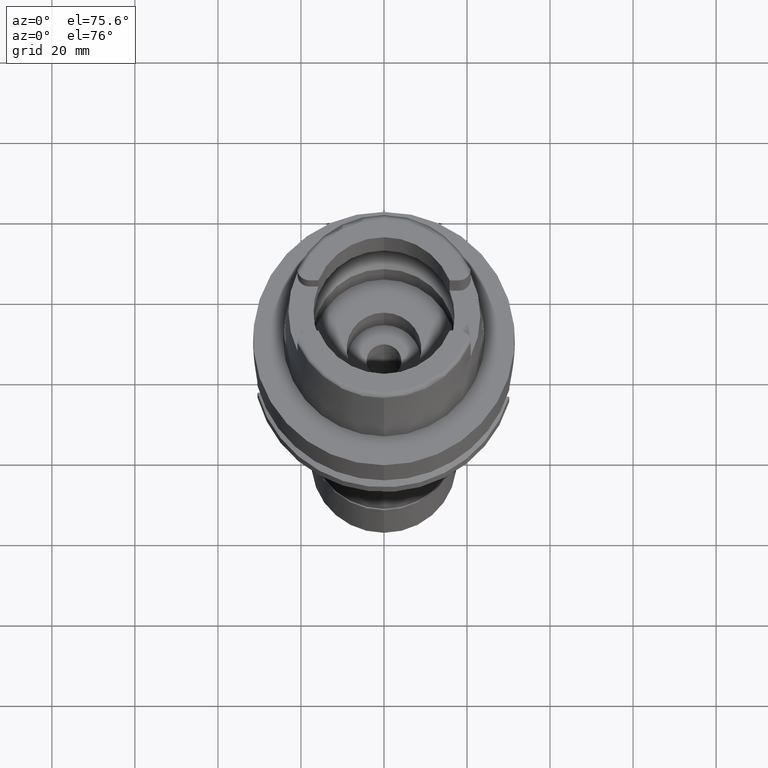
[diagram: clean part render]
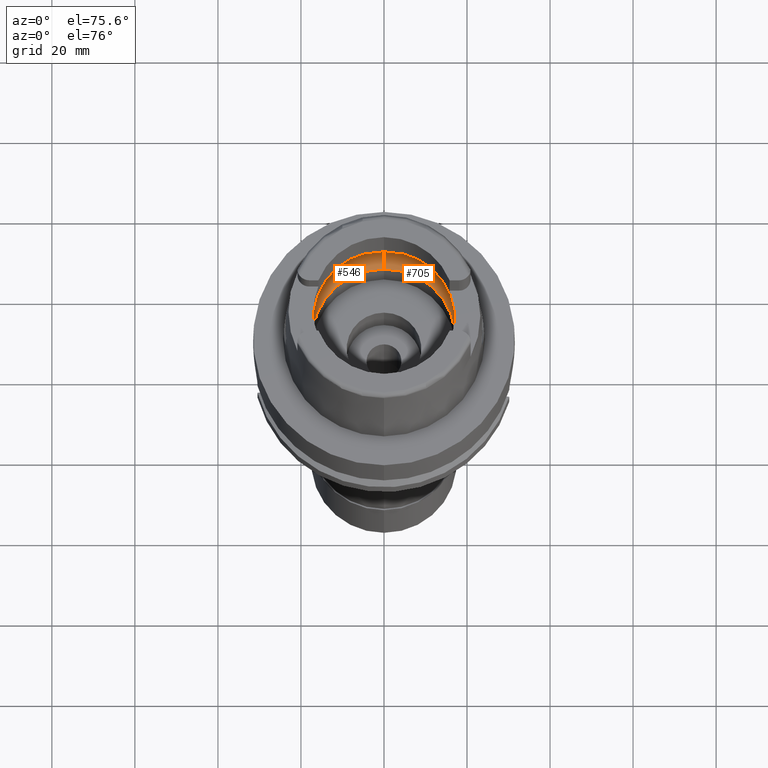
[diagram: same view with one multi-face feature highlighted, each face labeled with its STEP entity id]
A machine part, auxiliary view. The highlighted faces form ONE feature: a constant-radius fillet chain: 2 tangent blend faces with common blend radius 8 mm. The faces share edges in the B-rep.
Their STEP definitions:
[1] entity #705 (Torus):
#18 = CARTESIAN_POINT ( 'NONE',  ( 0.0000000000000000000, 12.00000000000000000, 6.186348233825000875 ) ) ;
#24 = DIRECTION ( 'NONE',  ( 0.0000000000000000000, 1.000000000000000000, 0.0000000000000000000 ) ) ;
#76 = CARTESIAN_POINT ( 'NONE',  ( 0.0000000000000000000, 0.0000000000000000000, 0.1500000000000999700 ) ) ;
#188 = CARTESIAN_POINT ( 'NONE',  ( 19.93292009014226096, -1.081811776603611053, 5.409026499425223733 ) ) ;
#237 = CARTESIAN_POINT ( 'NONE',  ( 19.92646197918816142, -1.305240201015147816, 5.484478803106724421 ) ) ;
#339 = CARTESIAN_POINT ( 'NONE',  ( 0.0000000000000000000, -20.00000000000000000, 6.186348233825000875 ) ) ;
#452 = AXIS2_PLACEMENT_3D ( 'NONE', #76, #1748, #5130 ) ;
#460 = CARTESIAN_POINT ( 'NONE',  ( 19.90056121658070509, 1.871176557661653028, 5.748254428408765548 ) ) ;
#569 = ORIENTED_EDGE ( 'NONE', *, *, #3215, .F. ) ;
#655 = CARTESIAN_POINT ( 'NONE',  ( 19.92839736527999150, -1.244570816102678723, 5.462385030248693596 ) ) ;
#668 = EDGE_CURVE ( 'NONE', #3730, #5454, #4762, .T. ) ;
#705 = ADVANCED_FACE ( 'NONE', ( #2918 ), #5026, .F. ) ;
#768 = CARTESIAN_POINT ( 'NONE',  ( 19.84575864665999845, -2.479085262491000030, 6.186348233825000875 ) ) ;
#816 = EDGE_CURVE ( 'NONE', #3168, #4409, #2826, .T. ) ;
#862 = ORIENTED_EDGE ( 'NONE', *, *, #5077, .F. ) ;
#870 = CARTESIAN_POINT ( 'NONE',  ( 19.92390802166061903, 1.380021155214873119, 5.513101308918829879 ) ) ;
#874 = DIRECTION ( 'NONE',  ( 0.0000000000000000000, 0.0000000000000000000, 1.000000000000000000 ) ) ;
#1093 = ORIENTED_EDGE ( 'NONE', *, *, #4145, .F. ) ;
#1251 = B_SPLINE_CURVE_WITH_KNOTS ( 'NONE', 3,
 ( #5129, #5242, #4427, #1804, #1828, #188, #1392, #655, #3133, #237, #3989, #3910, #1443, #2739, #5265 ),
 .UNSPECIFIED., .F., .F.,
 ( 4, 2, 2, 1, 1, 1, 2, 2, 4 ),
 ( 0.0000000000000000000, 0.2499999999999993339, 0.3749999999999990008, 0.4374999999999986677, 0.4687499999999983902, 0.4843749999999981126, 0.4921874999999981681, 0.4999999999999982792, 1.000000000000000000 ),
 .UNSPECIFIED. ) ;
#1259 = CARTESIAN_POINT ( 'NONE',  ( 0.0000000000000000000, 0.0000000000000000000, 6.186348233825000875 ) ) ;
#1274 = DIRECTION ( 'NONE',  ( 0.0000000000000000000, 1.000000000000000000, 0.0000000000000000000 ) ) ;
#1298 = DIRECTION ( 'NONE',  ( 0.0000000000000000000, 0.0000000000000000000, -1.000000000000000000 ) ) ;
#1314 = EDGE_CURVE ( 'NONE', #4409, #2440, #2295, .T. ) ;
#1392 = CARTESIAN_POINT ( 'NONE',  ( 19.93095478351687788, -1.158129430943390714, 5.432640251379949881 ) ) ;
#1400 = AXIS2_PLACEMENT_3D ( 'NONE', #2073, #1298, #1274 ) ;
#1416 = EDGE_LOOP ( 'NONE', ( #862, #1093, #3316, #4706, #5299, #2002, #569 ) ) ;
#1443 = CARTESIAN_POINT ( 'NONE',  ( 19.90995224292280952, -1.795938310847498887, 5.670407811397682352 ) ) ;
#1689 = DIRECTION ( 'NONE',  ( 1.000000000000000000, 0.0000000000000000000, 0.0000000000000000000 ) ) ;
#1748 = DIRECTION ( 'NONE',  ( 0.0000000000000000000, 0.0000000000000000000, 1.000000000000000000 ) ) ;
#1797 = EDGE_CURVE ( 'NONE', #3168, #5454, #5234, .T. ) ;
#1804 = CARTESIAN_POINT ( 'NONE',  ( 19.93856404763053192, -0.8186976556962145546, 5.338708415004473906 ) ) ;
#1828 = CARTESIAN_POINT ( 'NONE',  ( 19.93654834852758029, -0.9262717684427494991, 5.364597653862777982 ) ) ;
#1849 = B_SPLINE_CURVE_WITH_KNOTS ( 'NONE', 3,
 ( #4288, #4264, #2655, #460, #3833, #2185, #4646, #2135, #870, #4344, #2159, #4754, #2105, #2545, #3810 ),
 .UNSPECIFIED., .F., .F.,
 ( 4, 2, 2, 1, 1, 1, 2, 2, 4 ),
 ( 0.0000000000000000000, 0.2499999999999978906, 0.3749999999999969469, 0.4374999999999963363, 0.4687499999999959477, 0.4843749999999960587, 0.4921874999999960032, 0.4999999999999960032, 1.000000000000000000 ),
 .UNSPECIFIED. ) ;
#2002 = ORIENTED_EDGE ( 'NONE', *, *, #668, .F. ) ;
#2073 = CARTESIAN_POINT ( 'NONE',  ( 0.0000000000000000000, 0.0000000000000000000, 6.186348233825000875 ) ) ;
#2105 = CARTESIAN_POINT ( 'NONE',  ( 19.93856420101220195, 0.9461154250117944642, 5.348253029309250728 ) ) ;
#2118 = AXIS2_PLACEMENT_3D ( 'NONE', #3813, #874, #24 ) ;
#2135 = CARTESIAN_POINT ( 'NONE',  ( 19.92207735139349367, 1.430229258461773956, 5.533213523230517517 ) ) ;
#2159 = CARTESIAN_POINT ( 'NONE',  ( 19.92517031495895097, 1.343818775761117967, 5.499041339644736404 ) ) ;
#2185 = CARTESIAN_POINT ( 'NONE',  ( 19.91447780742437246, 1.610663291711310841, 5.612998104004511823 ) ) ;
#2284 = DIRECTION ( 'NONE',  ( -1.000000000000000000, 0.0000000000000000000, 0.0000000000000000000 ) ) ;
#2295 = CIRCLE ( 'NONE', #5401, 7.999999999999992895 ) ;
#2440 = VERTEX_POINT ( 'NONE', #4066 ) ;
#2497 = DIRECTION ( 'NONE',  ( 0.0000000000000000000, 0.0000000000000000000, -1.000000000000000000 ) ) ;
#2545 = CARTESIAN_POINT ( 'NONE',  ( 19.94501428475999560, 0.4961178817713813860, 5.250000000000000888 ) ) ;
#2556 = CARTESIAN_POINT ( 'NONE',  ( 0.0000000000000000000, 17.25000000000000000, 0.1500000000000999700 ) ) ;
#2655 = CARTESIAN_POINT ( 'NONE',  ( 19.88058486986654572, 2.158464112384509193, 5.925242031513535679 ) ) ;
#2739 = CARTESIAN_POINT ( 'NONE',  ( 19.88331726735227534, -2.178418184679673075, 5.921432962333633476 ) ) ;
#2826 = CIRCLE ( 'NONE', #452, 17.25000000000000000 ) ;
#2918 = FACE_OUTER_BOUND ( 'NONE', #1416, .T. ) ;
#3133 = CARTESIAN_POINT ( 'NONE',  ( 19.92705251603473116, -1.287137774195264317, 5.477775297526362941 ) ) ;
#3168 = VERTEX_POINT ( 'NONE', #3812 ) ;
#3215 = EDGE_CURVE ( 'NONE', #3867, #3730, #1251, .T. ) ;
#3249 = CARTESIAN_POINT ( 'NONE',  ( 0.0000000000000000000, -12.00000000000000000, 6.186348233825000875 ) ) ;
#3316 = ORIENTED_EDGE ( 'NONE', *, *, #1314, .F. ) ;
#3319 = DIRECTION ( 'NONE',  ( 0.0000000000000000000, 0.6562500000000006661, -0.7545435292281016393 ) ) ;
#3701 = AXIS2_PLACEMENT_3D ( 'NONE', #1259, #2497, #5009 ) ;
#3730 = VERTEX_POINT ( 'NONE', #768 ) ;
#3793 = CARTESIAN_POINT ( 'NONE',  ( 19.94501428475999916, 0.0000000000000000000, 5.250000000000000000 ) ) ;
#3810 = CARTESIAN_POINT ( 'NONE',  ( 19.94501428475999916, 0.0000000000000000000, 5.250000000000000000 ) ) ;
#3812 = CARTESIAN_POINT ( 'NONE',  ( 0.0000000000000000000, -17.25000000000000000, 0.1500000000000999700 ) ) ;
#3813 = CARTESIAN_POINT ( 'NONE',  ( 0.0000000000000000000, 0.0000000000000000000, 6.186348233825000875 ) ) ;
#3833 = CARTESIAN_POINT ( 'NONE',  ( 19.90653740763088919, 1.770130309642983013, 5.691947549107391424 ) ) ;
#3867 = VERTEX_POINT ( 'NONE', #3793 ) ;
#3910 = CARTESIAN_POINT ( 'NONE',  ( 19.92590906290985586, -1.321975527286266106, 5.490734903793783594 ) ) ;
#3914 = VERTEX_POINT ( 'NONE', #4824 ) ;
#3989 = CARTESIAN_POINT ( 'NONE',  ( 19.92606513842726201, -1.317277204138071589, 5.488971370721936083 ) ) ;
#4066 = CARTESIAN_POINT ( 'NONE',  ( 0.0000000000000000000, 20.00000000000000000, 6.186348233825000875 ) ) ;
#4145 = EDGE_CURVE ( 'NONE', #2440, #3914, #5200, .T. ) ;
#4264 = CARTESIAN_POINT ( 'NONE',  ( 19.86453694063900954, 2.328759859908619223, 6.053897766926341184 ) ) ;
#4288 = CARTESIAN_POINT ( 'NONE',  ( 19.84575864665999845, 2.479085262491000030, 6.186348233825000875 ) ) ;
#4344 = CARTESIAN_POINT ( 'NONE',  ( 19.92466859728581952, 1.358323626958147345, 5.504643456233413445 ) ) ;
#4409 = VERTEX_POINT ( 'NONE', #2556 ) ;
#4427 = CARTESIAN_POINT ( 'NONE',  ( 19.94340172547763146, -0.4850964740021458943, 5.274618261423835719 ) ) ;
#4646 = CARTESIAN_POINT ( 'NONE',  ( 19.91819203562567253, 1.528958543118313473, 5.574902925593662850 ) ) ;
#4706 = ORIENTED_EDGE ( 'NONE', *, *, #816, .F. ) ;
#4754 = CARTESIAN_POINT ( 'NONE',  ( 19.92546246839948410, 1.335240779489388130, 5.495763556830105756 ) ) ;
#4762 = CIRCLE ( 'NONE', #3701, 20.00000000000001421 ) ;
#4778 = AXIS2_PLACEMENT_3D ( 'NONE', #3249, #2284, #4822 ) ;
#4822 = DIRECTION ( 'NONE',  ( 0.0000000000000000000, -0.6562500000000006661, -0.7545435292281016393 ) ) ;
#4824 = CARTESIAN_POINT ( 'NONE',  ( 19.84575864665999845, 2.479085262491000030, 6.186348233825000875 ) ) ;
#5009 = DIRECTION ( 'NONE',  ( 0.9922879323327794543, -0.1239542631244973381, 0.0000000000000000000 ) ) ;
#5026 = TOROIDAL_SURFACE ( 'NONE', #2118, 12.00000000000000000, 8.000000000000000000 ) ;
#5077 = EDGE_CURVE ( 'NONE', #3914, #3867, #1849, .T. ) ;
#5129 = CARTESIAN_POINT ( 'NONE',  ( 19.94501428475999916, 0.0000000000000000000, 5.250000000000000000 ) ) ;
#5130 = DIRECTION ( 'NONE',  ( 0.0000000000000000000, -1.000000000000000000, 0.0000000000000000000 ) ) ;
#5200 = CIRCLE ( 'NONE', #1400, 20.00000000000000000 ) ;
#5234 = CIRCLE ( 'NONE', #4778, 7.999999999999992895 ) ;
#5242 = CARTESIAN_POINT ( 'NONE',  ( 19.94501428475999560, -0.2480409225904678383, 5.250000000000000000 ) ) ;
#5265 = CARTESIAN_POINT ( 'NONE',  ( 19.84575864665999845, -2.479085262491000030, 6.186348233825000875 ) ) ;
#5299 = ORIENTED_EDGE ( 'NONE', *, *, #1797, .T. ) ;
#5401 = AXIS2_PLACEMENT_3D ( 'NONE', #18, #1689, #3319 ) ;
#5454 = VERTEX_POINT ( 'NONE', #339 ) ;
[2] entity #546 (Torus):
#18 = CARTESIAN_POINT ( 'NONE',  ( 0.0000000000000000000, 12.00000000000000000, 6.186348233825000875 ) ) ;
#30 = CARTESIAN_POINT ( 'NONE',  ( -19.93654847024033927, 0.9262661514275534191, 5.364596242157149142 ) ) ;
#82 = CARTESIAN_POINT ( 'NONE',  ( -19.84575864665999845, 2.479085262489999941, 6.186348233825000875 ) ) ;
#199 = FACE_OUTER_BOUND ( 'NONE', #3698, .T. ) ;
#245 = B_SPLINE_CURVE_WITH_KNOTS ( 'NONE', 3,
 ( #4402, #2268, #1830, #2219, #3864, #3891, #1062, #2298, #3080, #2710, #2687, #3053, #3968, #1468, #1034 ),
 .UNSPECIFIED., .F., .F.,
 ( 4, 2, 2, 1, 1, 1, 2, 2, 4 ),
 ( 0.0000000000000000000, 0.2500000000000016653, 0.3750000000000023870, 0.4375000000000028866, 0.4687500000000030531, 0.4843750000000031641, 0.4921875000000032196, 0.5000000000000032196, 1.000000000000000000 ),
 .UNSPECIFIED. ) ;
#339 = CARTESIAN_POINT ( 'NONE',  ( 0.0000000000000000000, -20.00000000000000000, 6.186348233825000875 ) ) ;
#472 = CARTESIAN_POINT ( 'NONE',  ( -19.93095498564698076, 1.158122524600810666, 5.432638017440244660 ) ) ;
#498 = CARTESIAN_POINT ( 'NONE',  ( -19.90995254882344412, 1.795933974831515068, 5.670404978818013753 ) ) ;
#510 = B_SPLINE_CURVE_WITH_KNOTS ( 'NONE', 3,
 ( #2972, #879, #2116, #2195, #30, #2554, #472, #2143, #4685, #2582, #1753, #4270, #498, #2168, #82 ),
 .UNSPECIFIED., .F., .F.,
 ( 4, 2, 2, 1, 1, 1, 2, 2, 4 ),
 ( 0.0000000000000000000, 0.2500000000000037748, 0.3750000000000058287, 0.4375000000000067168, 0.4687500000000069944, 0.4843750000000072720, 0.4921875000000072720, 0.5000000000000072164, 1.000000000000000000 ),
 .UNSPECIFIED. ) ;
#546 = ADVANCED_FACE ( 'NONE', ( #199 ), #3945, .F. ) ;
#879 = CARTESIAN_POINT ( 'NONE',  ( -19.94501428476000271, 0.2480393703315448006, 5.249999999999999112 ) ) ;
#905 = ORIENTED_EDGE ( 'NONE', *, *, #916, .F. ) ;
#916 = EDGE_CURVE ( 'NONE', #4970, #1554, #245, .T. ) ;
#1034 = CARTESIAN_POINT ( 'NONE',  ( -19.94501428475999916, 0.0000000000000000000, 5.250000000000000000 ) ) ;
#1062 = CARTESIAN_POINT ( 'NONE',  ( -19.91819175305377243, -1.528964846757111973, 5.574905751837347267 ) ) ;
#1202 = DIRECTION ( 'NONE',  ( 0.0000000000000000000, 1.000000000000000000, 0.0000000000000000000 ) ) ;
#1236 = DIRECTION ( 'NONE',  ( 0.0000000000000000000, 0.0000000000000000000, 1.000000000000000000 ) ) ;
#1262 = DIRECTION ( 'NONE',  ( -0.9922879323327794543, 0.1239542631244973381, 0.0000000000000000000 ) ) ;
#1314 = EDGE_CURVE ( 'NONE', #4409, #2440, #2295, .T. ) ;
#1358 = ORIENTED_EDGE ( 'NONE', *, *, #4452, .F. ) ;
#1374 = CARTESIAN_POINT ( 'NONE',  ( 0.0000000000000000000, 0.0000000000000000000, 6.186348233825000875 ) ) ;
#1468 = CARTESIAN_POINT ( 'NONE',  ( -19.94501428475999560, -0.4961209670605932209, 5.249999999999998224 ) ) ;
#1554 = VERTEX_POINT ( 'NONE', #2262 ) ;
#1689 = DIRECTION ( 'NONE',  ( 1.000000000000000000, 0.0000000000000000000, 0.0000000000000000000 ) ) ;
#1705 = DIRECTION ( 'NONE',  ( 0.0000000000000000000, -1.000000000000000000, 0.0000000000000000000 ) ) ;
#1753 = CARTESIAN_POINT ( 'NONE',  ( -19.92606541085463689, 1.317269455711140846, 5.488968463726680014 ) ) ;
#1797 = EDGE_CURVE ( 'NONE', #3168, #5454, #5234, .T. ) ;
#1830 = CARTESIAN_POINT ( 'NONE',  ( -19.88058468752640806, -2.158466029911068951, 5.925243478961304433 ) ) ;
#2116 = CARTESIAN_POINT ( 'NONE',  ( -19.94340174866101734, 0.4850934535354030630, 5.274617952747172822 ) ) ;
#2143 = CARTESIAN_POINT ( 'NONE',  ( -19.92839760417749062, 1.244563448290384899, 5.462382440187010246 ) ) ;
#2168 = CARTESIAN_POINT ( 'NONE',  ( -19.88331748051938064, 2.178416478297318104, 5.921431458854276464 ) ) ;
#2195 = CARTESIAN_POINT ( 'NONE',  ( -19.93856414036406477, 0.8186926599981305674, 5.338707319452686839 ) ) ;
#2206 = EDGE_CURVE ( 'NONE', #4409, #3168, #2351, .T. ) ;
#2219 = CARTESIAN_POINT ( 'NONE',  ( -19.90056096498078375, -1.871180422678105693, 5.748256676446665381 ) ) ;
#2262 = CARTESIAN_POINT ( 'NONE',  ( -19.94501428475999916, 0.0000000000000000000, 5.250000000000000000 ) ) ;
#2268 = CARTESIAN_POINT ( 'NONE',  ( -19.86453683446996266, -2.328760709817148111, 6.053898515773700417 ) ) ;
#2284 = DIRECTION ( 'NONE',  ( -1.000000000000000000, 0.0000000000000000000, 0.0000000000000000000 ) ) ;
#2295 = CIRCLE ( 'NONE', #5401, 7.999999999999992895 ) ;
#2298 = CARTESIAN_POINT ( 'NONE',  ( -19.92207706994746985, -1.430236285583133204, 5.533216425421237261 ) ) ;
#2351 = CIRCLE ( 'NONE', #5460, 17.25000000000000000 ) ;
#2394 = ORIENTED_EDGE ( 'NONE', *, *, #2567, .F. ) ;
#2434 = DIRECTION ( 'NONE',  ( 0.0000000000000000000, 0.0000000000000000000, 1.000000000000000000 ) ) ;
#2440 = VERTEX_POINT ( 'NONE', #4066 ) ;
#2554 = CARTESIAN_POINT ( 'NONE',  ( -19.93292026401761419, 1.081805289724191210, 5.409024550128566311 ) ) ;
#2556 = CARTESIAN_POINT ( 'NONE',  ( 0.0000000000000000000, 17.25000000000000000, 0.1500000000000999700 ) ) ;
#2567 = EDGE_CURVE ( 'NONE', #4492, #2440, #4022, .T. ) ;
#2582 = CARTESIAN_POINT ( 'NONE',  ( -19.92646224591025472, 1.305232515153943673, 5.484475949585862153 ) ) ;
#2671 = EDGE_CURVE ( 'NONE', #1554, #4492, #510, .T. ) ;
#2687 = CARTESIAN_POINT ( 'NONE',  ( -19.92517003708521273, -1.343826440312797077, 5.499044281752649255 ) ) ;
#2710 = CARTESIAN_POINT ( 'NONE',  ( -19.92466831866535770, -1.358331184285348270, 5.504646393194166265 ) ) ;
#2832 = CARTESIAN_POINT ( 'NONE',  ( 0.0000000000000000000, 0.0000000000000000000, 6.186348233825000875 ) ) ;
#2972 = CARTESIAN_POINT ( 'NONE',  ( -19.94501428475999916, 0.0000000000000000000, 5.250000000000000000 ) ) ;
#3053 = CARTESIAN_POINT ( 'NONE',  ( -19.92546218847456529, -1.335248582686434426, 5.495766530070138600 ) ) ;
#3080 = CARTESIAN_POINT ( 'NONE',  ( -19.92390774200794112, -1.380028552273980136, 5.513104237275524788 ) ) ;
#3168 = VERTEX_POINT ( 'NONE', #3812 ) ;
#3249 = CARTESIAN_POINT ( 'NONE',  ( 0.0000000000000000000, -12.00000000000000000, 6.186348233825000875 ) ) ;
#3306 = CARTESIAN_POINT ( 'NONE',  ( 0.0000000000000000000, 0.0000000000000000000, 6.186348233825000875 ) ) ;
#3307 = CARTESIAN_POINT ( 'NONE',  ( 0.0000000000000000000, 0.0000000000000000000, 0.1500000000000999700 ) ) ;
#3319 = DIRECTION ( 'NONE',  ( 0.0000000000000000000, 0.6562500000000006661, -0.7545435292281016393 ) ) ;
#3430 = AXIS2_PLACEMENT_3D ( 'NONE', #1374, #4328, #1262 ) ;
#3523 = AXIS2_PLACEMENT_3D ( 'NONE', #2832, #2434, #1202 ) ;
#3698 = EDGE_LOOP ( 'NONE', ( #1358, #4590, #4086, #4265, #2394, #5142, #905 ) ) ;
#3812 = CARTESIAN_POINT ( 'NONE',  ( 0.0000000000000000000, -17.25000000000000000, 0.1500000000000999700 ) ) ;
#3864 = CARTESIAN_POINT ( 'NONE',  ( -19.90653714044385936, -1.770134880955051226, 5.691950022312413537 ) ) ;
#3891 = CARTESIAN_POINT ( 'NONE',  ( -19.91447752810589833, -1.610669004317299313, 5.613000827215236299 ) ) ;
#3945 = TOROIDAL_SURFACE ( 'NONE', #3523, 12.00000000000000000, 8.000000000000000000 ) ;
#3968 = CARTESIAN_POINT ( 'NONE',  ( -19.93856410866583317, -0.9461212226835923333, 5.348254255821970560 ) ) ;
#4022 = CIRCLE ( 'NONE', #3430, 20.00000000000001421 ) ;
#4066 = CARTESIAN_POINT ( 'NONE',  ( 0.0000000000000000000, 20.00000000000000000, 6.186348233825000875 ) ) ;
#4086 = ORIENTED_EDGE ( 'NONE', *, *, #2206, .F. ) ;
#4186 = CARTESIAN_POINT ( 'NONE',  ( -19.84575864665999845, 2.479085262489999941, 6.186348233825000875 ) ) ;
#4265 = ORIENTED_EDGE ( 'NONE', *, *, #1314, .T. ) ;
#4270 = CARTESIAN_POINT ( 'NONE',  ( -19.92590934067762731, 1.321967662511047470, 5.490731940949380885 ) ) ;
#4328 = DIRECTION ( 'NONE',  ( 0.0000000000000000000, 0.0000000000000000000, -1.000000000000000000 ) ) ;
#4402 = CARTESIAN_POINT ( 'NONE',  ( -19.84575864665999845, -2.479085262491000030, 6.186348233825000875 ) ) ;
#4404 = AXIS2_PLACEMENT_3D ( 'NONE', #3306, #5054, #1705 ) ;
#4409 = VERTEX_POINT ( 'NONE', #2556 ) ;
#4452 = EDGE_CURVE ( 'NONE', #5454, #4970, #4926, .T. ) ;
#4492 = VERTEX_POINT ( 'NONE', #4186 ) ;
#4590 = ORIENTED_EDGE ( 'NONE', *, *, #1797, .F. ) ;
#4685 = CARTESIAN_POINT ( 'NONE',  ( -19.92705277426681576, 1.287130182688421165, 5.477772523843790431 ) ) ;
#4778 = AXIS2_PLACEMENT_3D ( 'NONE', #3249, #2284, #4822 ) ;
#4822 = DIRECTION ( 'NONE',  ( 0.0000000000000000000, -0.6562500000000006661, -0.7545435292281016393 ) ) ;
#4926 = CIRCLE ( 'NONE', #4404, 20.00000000000000000 ) ;
#4970 = VERTEX_POINT ( 'NONE', #5215 ) ;
#4992 = DIRECTION ( 'NONE',  ( 0.0000000000000000000, 1.000000000000000000, 0.0000000000000000000 ) ) ;
#5054 = DIRECTION ( 'NONE',  ( 0.0000000000000000000, 0.0000000000000000000, -1.000000000000000000 ) ) ;
#5142 = ORIENTED_EDGE ( 'NONE', *, *, #2671, .F. ) ;
#5215 = CARTESIAN_POINT ( 'NONE',  ( -19.84575864665999845, -2.479085262491000030, 6.186348233825000875 ) ) ;
#5234 = CIRCLE ( 'NONE', #4778, 7.999999999999992895 ) ;
#5401 = AXIS2_PLACEMENT_3D ( 'NONE', #18, #1689, #3319 ) ;
#5454 = VERTEX_POINT ( 'NONE', #339 ) ;
#5460 = AXIS2_PLACEMENT_3D ( 'NONE', #3307, #1236, #4992 ) ;